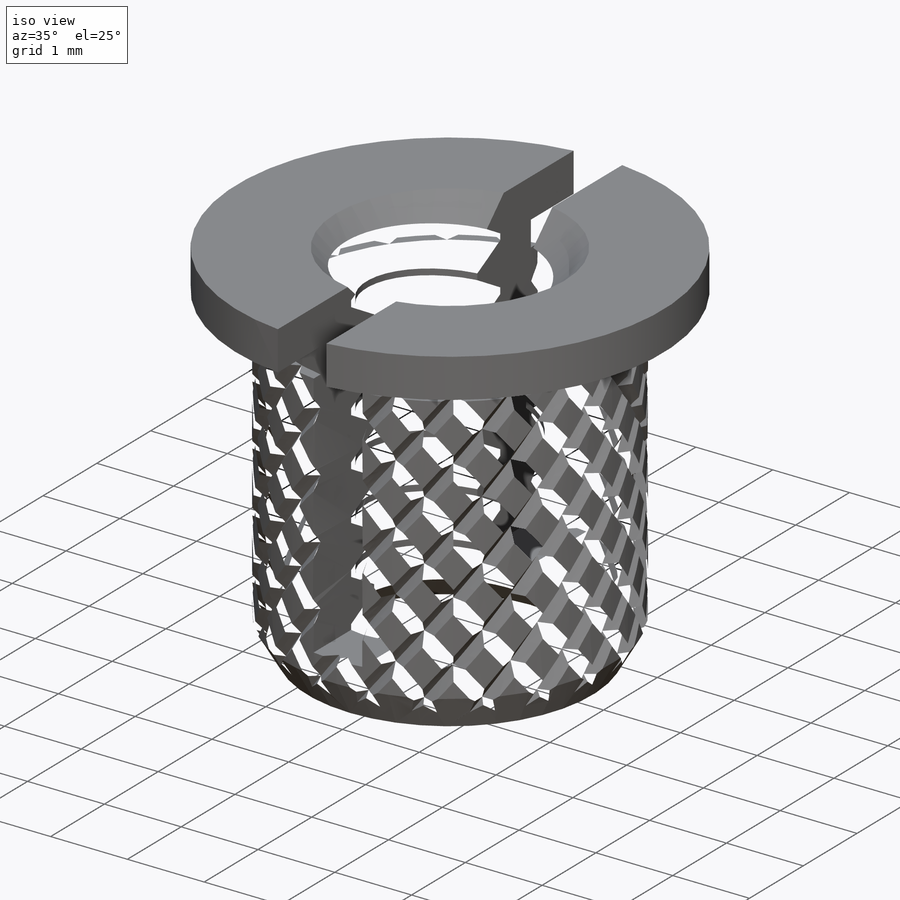
[diagram: iso view]
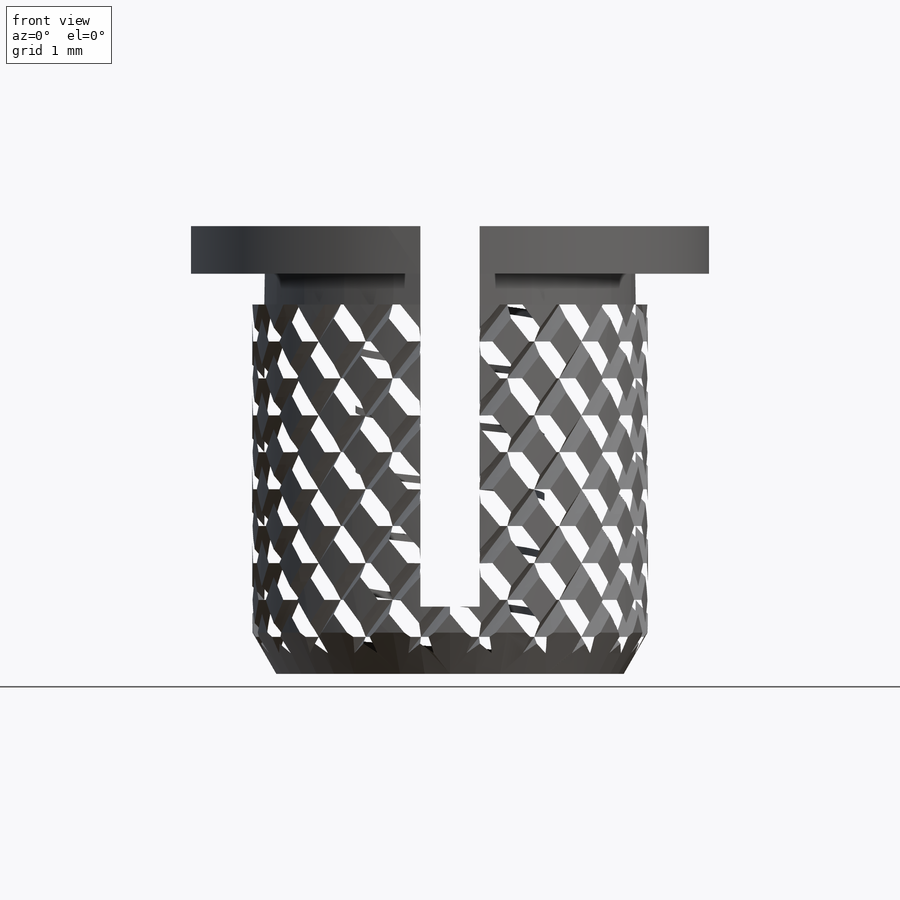
[diagram: front view]
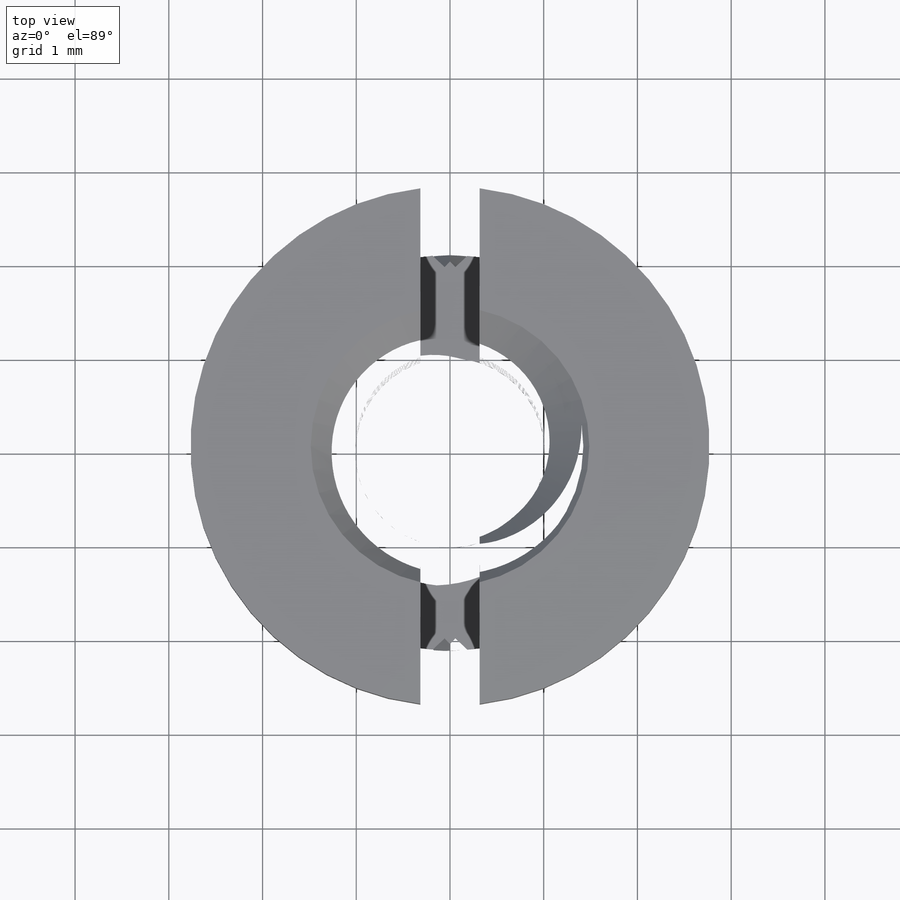
[diagram: top view]
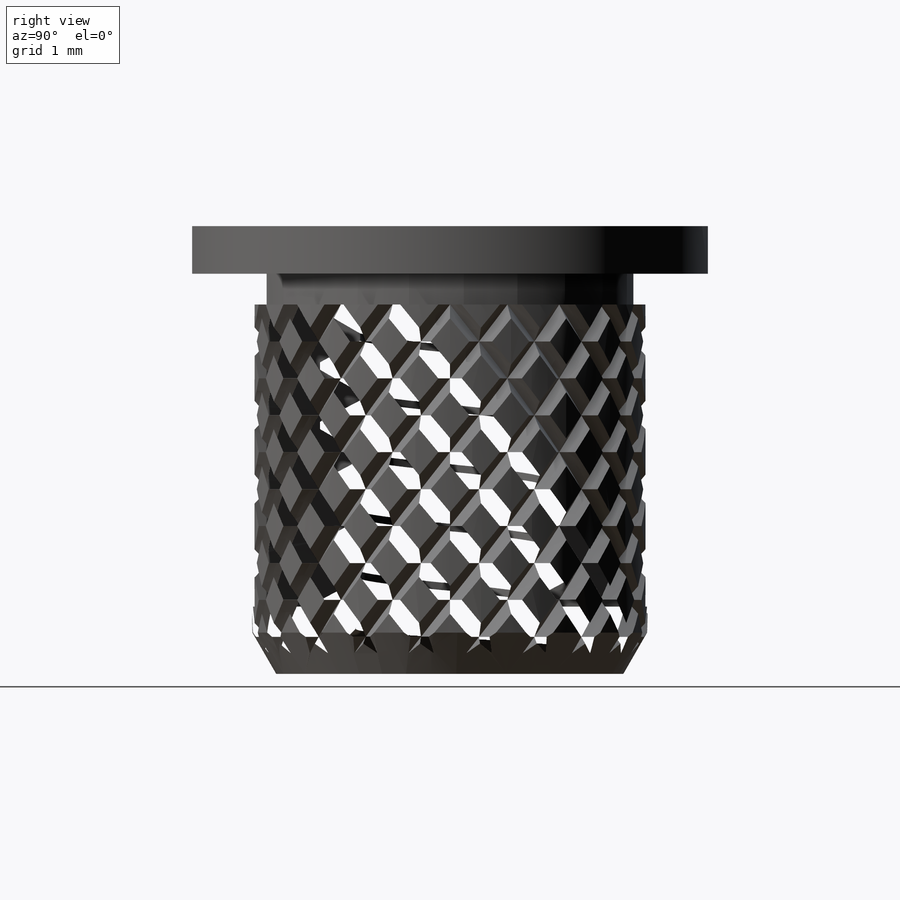
[diagram: right view]
SOLIDWORKS PART (.sldprt)
format: sldprt  version: not decoded by parser v0  size: 2,309,120 bytes
history: native  units: mm
features: sketch x10, extrude x3, helix x2, cut_extrude x2, chamfer x2, sweep x2, material x1, mirror x1, pattern_circular x1 (+12 scaffold rows collapsed)
feature tree (36):
  scaffold x12  (default folders/planes/origin — collapsed)
  material  "Brass"
  sketch  "Sketch0"  dims[c1.L=4.7752mm c1.Collar Height=~1.04775mm c1.D2=~0.72644mm c1.Slot Height=~4.05892mm c1.Slot Width=~1.04775mm c2.D2=~1.822988mm c3.D2=50.0deg c3.B=7.366mm c3.D5=4.7752mm c3.D1=~4.05892mm c3.Slot Height=0.381mm c3.A=3.9624mm c3.Thread OD=2.8448mm c4.B=2.6416mm c4.Slot Width=~0.63246mm c4.Slot Height=9.525mm c4.Plate Thickness=~0.36576mm c5.B=4.2164mm c5.Knurl=~3.93954mm c5.Flange=0.508mm c5.A2=5.5372mm c5.D1=9.525mm c5.D2=2.3876mm c5.Slot Height=~4.05892mm]
  sketch  "Sketch1"  dims[C=6.1468mm A=6.6802mm]
  extrude  "Extrude1"  [1 undecoded]
  sketch  "Sketch2"  dims[Thread OD=3.5052mm D1=0.0mm]
  helix  "Helix/Spiral1"  Pitch=6.770111mm Height=6.770111mm
  sketch  "Sketch3"  dims[D1=0.635mm D2=~0.079375mm]
  extrude  "Extrude1.5"  [1 undecoded]
  sketch  "Sketch1<5>"
  extrude  "Extrude2"  [1 undecoded]
  sketch  "Sketch1<4>"
  sketch  "Sketch4"  dims[Thread OD=3.5052mm]
  cut_extrude  "Extrude3"  [1 undecoded]
  chamfer  "Chamfer1"  Distance=0.47625mm Angle=45deg
  chamfer  "Chamfer2"  Distance=0.254mm Angle=60deg
  sketch  "Sketch8"
  cut_extrude  "Extrude4"  [1 undecoded]
  sketch  "Sketch6"
  helix  "Helix/Spiral0"  Pitch=3.93954mm Height=3.93954mm
  sketch  "Sketch7"  dims[D1=0.1778mm]
  sweep  "Cut-Sweep0"
  mirror  "Mirror1"
  pattern_circular  "CirPattern0"  Count=20 Angle=360deg
  sweep  "Cut-Sweep1"
decode coverage: 11 of 23 modeling features carry decoded parameters
note: ~ marks probable driven/reference dimensions
note: 5 parameter values undecoded
summary: no parameter record found for 5 features
note: suppression state not decoded; provenance and decode notes live in map.json
